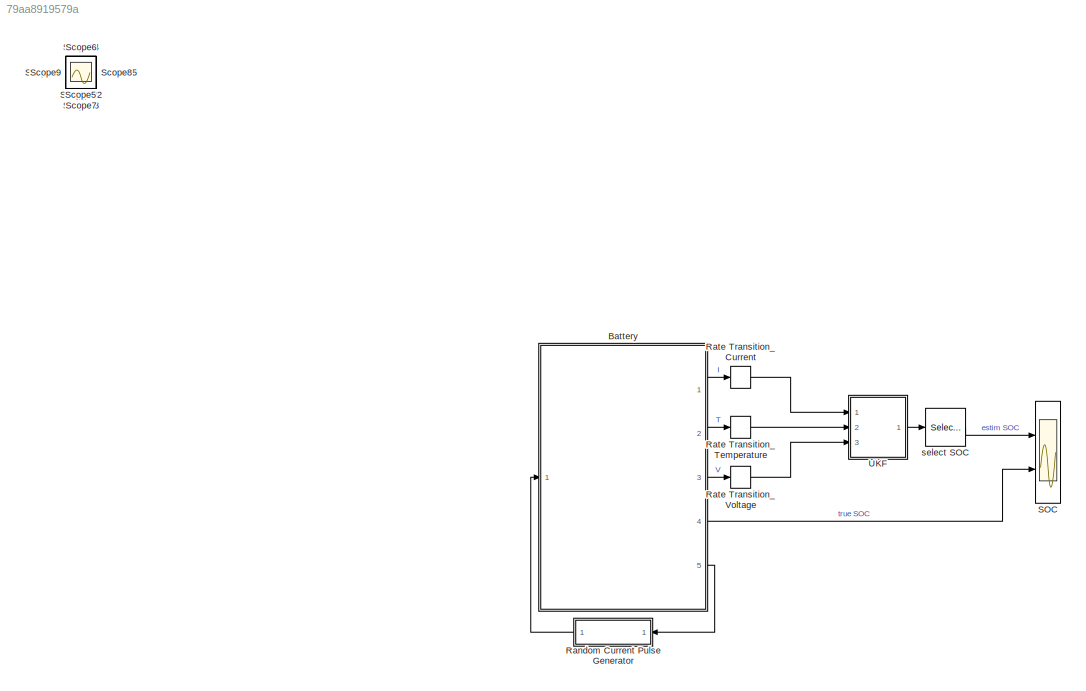
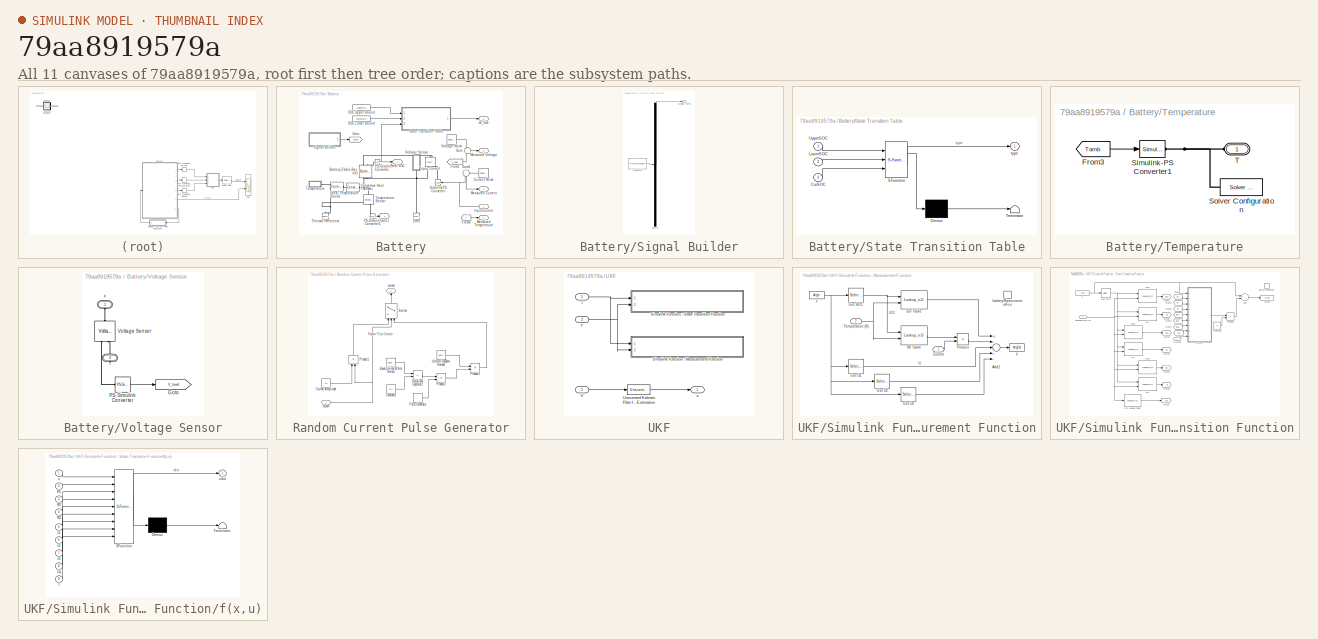
[diagram: thumbnail index - all 11 canvases of the model, root first then tree order]
MODEL slx_79aa8919579a
KIND model
CONFIG AbsTol = auto
CONFIG EnableMultiTasking = off
CONFIG FixedStep = auto
CONFIG MaxStep = auto
CONFIG MinStep = auto
CONFIG PreLoadFcn = socEstimation_ini\nload('BatteryParameters')
CONFIG RelTol = 1e-3
CONFIG SampleTimeConstraint = Unconstrained
CONFIG Solver = VariableStepAuto
CONFIG SolverName = VariableStepAuto
CONFIG StartTime = 0.0
CONFIG StopTime = 20000
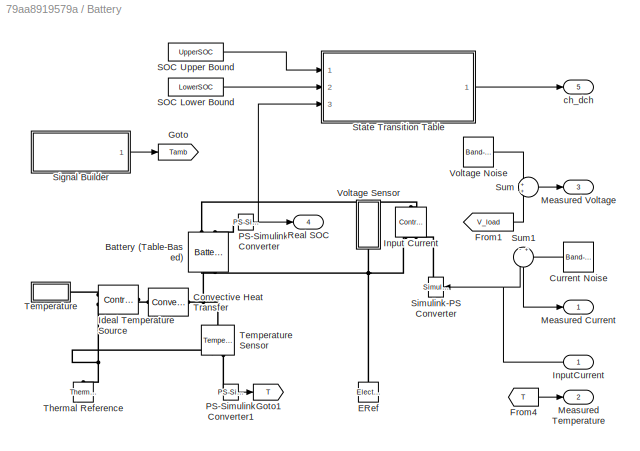
BLOCK [SubSystem] Battery
  Ports = [1, 5]
  RequestExecContextInheritance = off
BLOCK [Reference] Battery/Battery (Table-Based)  REF=ee_lib/Sources/Battery
(Table-Based)
  Ports = [0, 0, 0, 0, 0, 2, 2]
  SourceBlock = ee_lib/Sources/Battery\n(Table-Based)
  SourceProductBaseCode = PS
  SourceProductName = Simscape Electrical
  SourceType = Battery\n(Table-Based)
BLOCK [Reference] Battery/Convective Heat Transfer  REF=fl_lib/Thermal/Thermal Elements/Convective Heat
Transfer
  Ports = [0, 0, 0, 0, 0, 1, 1]
  SourceBlock = fl_lib/Thermal/Thermal Elements/Convective Heat\nTransfer
  SourceProductBaseCode = SS
  SourceProductName = Simscape
  SourceType = Convective Heat\nTransfer
BLOCK [Reference] Battery/Current Noise  REF=simulink/Sources/Band-Limited
White Noise
  Ports = [0, 1]
  SourceBlock = simulink/Sources/Band-Limited\nWhite Noise
  SourceProductBaseCode = SL
  SourceProductName = Simulink
  SourceType = Band-Limited White Noise.
BLOCK [Reference] Battery/ERef  REF=fl_lib/Electrical/Electrical Elements/Electrical Reference
  Ports = [0, 0, 0, 0, 0, 1]
  SourceBlock = fl_lib/Electrical/Electrical Elements/Electrical Reference
  SourceProductBaseCode = SS
  SourceProductName = Simscape
  SourceType = Electrical Reference
BLOCK [From] Battery/From1
  GotoTag = V_load
  TagVisibility = global
BLOCK [From] Battery/From4
  GotoTag = T
BLOCK [Goto] Battery/Goto
  GotoTag = Tamb
  TagVisibility = global
BLOCK [Goto] Battery/Goto1
  GotoTag = T
BLOCK [Reference] Battery/Ideal Temperature Source  REF=fl_lib/Thermal/Thermal Sources/Controlled
Temperature Source
  Ports = [0, 0, 0, 0, 0, 1, 2]
  SourceBlock = fl_lib/Thermal/Thermal Sources/Controlled\nTemperature Source
  SourceProductBaseCode = SS
  SourceProductName = Simscape
  SourceType = Controlled\nTemperature Source
BLOCK [Reference] Battery/Input Current  REF=fl_lib/Electrical/Electrical Sources/Controlled Current
Source
  Ports = [0, 0, 0, 0, 0, 1, 2]
  SourceBlock = fl_lib/Electrical/Electrical Sources/Controlled Current\nSource
  SourceProductBaseCode = SS
  SourceProductName = Simscape
  SourceType = Controlled Current\nSource
BLOCK [Inport] Battery/InputCurrent
  IconDisplay = Port number
BLOCK [Outport] Battery/Measured Current
  IconDisplay = Port number
  VectorParamsAs1DForOutWhenUnconnected = off
BLOCK [Outport] Battery/Measured Temperature
  IconDisplay = Port number
  Port = 2
  VectorParamsAs1DForOutWhenUnconnected = off
BLOCK [Outport] Battery/Measured Voltage
  IconDisplay = Port number
  Port = 3
  VectorParamsAs1DForOutWhenUnconnected = off
BLOCK [Reference] Battery/PS-Simulink Converter  REF=nesl_utility/PS-Simulink
Converter
  Ports = [0, 1, 0, 0, 0, 1]
  SourceBlock = nesl_utility/PS-Simulink\nConverter
  SourceProductBaseCode = SS
  SourceProductName = Simscape
  SourceType = PS-Simulink\nConverter
BLOCK [Reference] Battery/PS-Simulink Converter1  REF=nesl_utility/PS-Simulink
Converter
  Ports = [0, 1, 0, 0, 0, 1]
  SourceBlock = nesl_utility/PS-Simulink\nConverter
  SourceProductBaseCode = SS
  SourceProductName = Simscape
  SourceType = PS-Simulink\nConverter
BLOCK [Outport] Battery/Real SOC
  IconDisplay = Port number
  Port = 4
  VectorParamsAs1DForOutWhenUnconnected = off
BLOCK [Constant] Battery/SOC Lower Bound
  Value = LowerSOC
BLOCK [Constant] Battery/SOC Upper Bound
  Value = UpperSOC
BLOCK [SubSystem] Battery/Signal Builder
  ClipboardFcn = sigbuilder_block('clipboard');
  CloseFcn = sigbuilder_block('close');
  ContinueFcn = sigbuilder_block('continue');
  CopyFcn = sigbuilder_block('copy');
  DeleteFcn = sigbuilder_block('delete');
  LoadFcn = sigbuilder_block('load');
  MaskHideContents = on
  ModelCloseFcn = sigbuilder_block('modelClose');
  NameChangeFcn = sigbuilder_block('namechange');
  OpenFcn = sigbuilder_block('open',[45.6 240 978 346.2 ]);
  PauseFcn = sigbuilder_block('pause');
  Ports = [0, 1]
  PreSaveFcn = sigbuilder_block('preSave');
  RequestExecContextInheritance = off
  StartFcn = sigbuilder_block('start');
  StopFcn = sigbuilder_block('stop');
  Tag = STV Subsys
BLOCK [Outport] Battery/Signal Builder/Ambient Temp
  IconDisplay = Port number
  Tag = STV Outport
  VectorParamsAs1DForOutWhenUnconnected = off
BLOCK [Demux] Battery/Signal Builder/Demux
  Outputs = 1
  Ports = [1, 1]
  Tag = STV Demux
BLOCK [FromWorkspace] Battery/Signal Builder/FromWs
  SampleTime = 0
  Tag = STV FromWs
  VariableName = tuvar
  ZeroCross = on
BLOCK [Reference] Battery/Simulink-PS Converter  REF=nesl_utility/Simulink-PS
Converter
  Ports = [1, 0, 0, 0, 0, 0, 1]
  SourceBlock = nesl_utility/Simulink-PS\nConverter
  SourceProductBaseCode = SS
  SourceProductName = Simscape
  SourceType = Simulink-PS\nConverter
BLOCK [SubSystem] Battery/State Transition Table
  ErrorFcn = Stateflow.Translate.translate
  PermitHierarchicalResolution = ExplicitOnly
  Ports = [3, 1]
  RequestExecContextInheritance = off
  SFBlockType = State Transition Table
  TreatAsAtomicUnit = on
BLOCK [Demux] Battery/State Transition Table/ Demux 
  Outputs = 1
  Ports = [1, 1]
BLOCK [S-Function] Battery/State Transition Table/ SFunction 
  EnableBusSupport = on
  FunctionName = sf_sfun
  PortCounts = [3 2]
  Ports = [3, 2]
  SFcnIsStateOwnerBlock = off
  SFunctionDeploymentMode = off
  Tag = Stateflow S-Function 4
BLOCK [Terminator] Battery/State Transition Table/ Terminator 
BLOCK [Inport] Battery/State Transition Table/CurSOC
  IconDisplay = Port number
  Port = 3
BLOCK [Inport] Battery/State Transition Table/LowerSOC
  IconDisplay = Port number
  Port = 2
BLOCK [Inport] Battery/State Transition Table/UpperSOC
  IconDisplay = Port number
BLOCK [Outport] Battery/State Transition Table/type
  IconDisplay = Port number
  VectorParamsAs1DForOutWhenUnconnected = off
BLOCK [Sum] Battery/Sum
  IconShape = round
  InputSameDT = off
  OutDataTypeStr = Inherit: Inherit via internal rule
  Ports = [2, 1]
  SaturateOnIntegerOverflow = off
BLOCK [Sum] Battery/Sum1
  IconShape = round
  InputSameDT = off
  Inputs = -+
  OutDataTypeStr = Inherit: Inherit via internal rule
  Ports = [2, 1]
  SaturateOnIntegerOverflow = off
BLOCK [SubSystem] Battery/Temperature
  Ports = [0, 0, 0, 0, 0, 1]
  RequestExecContextInheritance = off
BLOCK [Reference] Battery/Temperature Sensor  REF=fl_lib/Thermal/Thermal Sensors/Temperature Sensor
  Ports = [0, 0, 0, 0, 0, 1, 2]
  SourceBlock = fl_lib/Thermal/Thermal Sensors/Temperature Sensor
  SourceProductBaseCode = SS
  SourceProductName = Simscape
  SourceType = Temperature Sensor
BLOCK [From] Battery/Temperature/From3
  GotoTag = Tamb
  TagVisibility = global
BLOCK [Reference] Battery/Temperature/Simulink-PS Converter1  REF=nesl_utility/Simulink-PS
Converter
  Ports = [1, 0, 0, 0, 0, 0, 1]
  SourceBlock = nesl_utility/Simulink-PS\nConverter
  SourceProductBaseCode = SS
  SourceProductName = Simscape
  SourceType = Simulink-PS\nConverter
BLOCK [Reference] Battery/Temperature/Solver Configuration  REF=nesl_utility/Solver
Configuration
  Ports = [0, 0, 0, 0, 0, 0, 1]
  SourceBlock = nesl_utility/Solver\nConfiguration
  SourceProductBaseCode = SS
  SourceProductName = Simscape
  SourceType = Solver\nConfiguration
BLOCK [PMIOPort] Battery/Temperature/T
  Side = Left
BLOCK [Reference] Battery/Thermal Reference  REF=fl_lib/Thermal/Thermal Elements/Thermal Reference
  Ports = [0, 0, 0, 0, 0, 1]
  SourceBlock = fl_lib/Thermal/Thermal Elements/Thermal Reference
  SourceProductBaseCode = SS
  SourceProductName = Simscape
  SourceType = Thermal Reference
BLOCK [Reference] Battery/Voltage Noise  REF=simulink/Sources/Band-Limited
White Noise
  Ports = [0, 1]
  SourceBlock = simulink/Sources/Band-Limited\nWhite Noise
  SourceProductBaseCode = SL
  SourceProductName = Simulink
  SourceType = Band-Limited White Noise.
BLOCK [SubSystem] Battery/Voltage Sensor
  Ports = [0, 0, 0, 0, 0, 1, 1]
  RequestExecContextInheritance = off
BLOCK [PMIOPort] Battery/Voltage Sensor/+
  Side = Left
BLOCK [PMIOPort] Battery/Voltage Sensor/-
  Port = 2
  Side = Right
BLOCK [Goto] Battery/Voltage Sensor/Goto
  GotoTag = V_load
  TagVisibility = global
BLOCK [Reference] Battery/Voltage Sensor/PS-Simulink Converter  REF=nesl_utility/PS-Simulink
Converter
  Ports = [0, 1, 0, 0, 0, 1]
  SourceBlock = nesl_utility/PS-Simulink\nConverter
  SourceProductBaseCode = SS
  SourceProductName = Simscape
  SourceType = PS-Simulink\nConverter
BLOCK [Reference] Battery/Voltage Sensor/Voltage Sensor  REF=fl_lib/Electrical/Electrical Sensors/Voltage Sensor
  Ports = [0, 0, 0, 0, 0, 1, 2]
  SourceBlock = fl_lib/Electrical/Electrical Sensors/Voltage Sensor
  SourceProductBaseCode = SS
  SourceProductName = Simscape
  SourceType = Voltage Sensor
BLOCK [Outport] Battery/ch_dch
  IconDisplay = Port number
  Port = 5
  VectorParamsAs1DForOutWhenUnconnected = off
BLOCK [SubSystem] Random Current Pulse Generator
  Ports = [1, 1]
  RequestExecContextInheritance = off
BLOCK [Reference] Random Current Pulse Generator/Band-Limited White Noise1  REF=simulink/Sources/Band-Limited
White Noise
  Ports = [0, 1]
  SourceBlock = simulink/Sources/Band-Limited\nWhite Noise
  SourceProductBaseCode = SL
  SourceProductName = Simulink
  SourceType = Band-Limited White Noise.
BLOCK [Constant] Random Current Pulse Generator/Constant2
  Value = 0.1
BLOCK [Constant] Random Current Pulse Generator/Current Amplitude
  Value = 15
BLOCK [Product] Random Current Pulse Generator/Product1
  InputSameDT = off
  OutDataTypeStr = Inherit: Inherit via internal rule
  Ports = [2, 1]
  RndMeth = Floor
  SaturateOnIntegerOverflow = off
BLOCK [Product] Random Current Pulse Generator/Product2
  InputSameDT = off
  OutDataTypeStr = Inherit: Inherit via internal rule
  Ports = [2, 1]
  RndMeth = Floor
  SaturateOnIntegerOverflow = off
BLOCK [Product] Random Current Pulse Generator/Product3
  InputSameDT = off
  OutDataTypeStr = Inherit: Inherit via internal rule
  Ports = [2, 1]
  RndMeth = Floor
  SaturateOnIntegerOverflow = off
BLOCK [DiscretePulseGenerator] Random Current Pulse Generator/Pulse Generator
  Amplitude = -1
  Period = 1000
  Ports = [0, 1]
  PulseType = Time based
  PulseWidth = 90
BLOCK [RelationalOperator] Random Current Pulse Generator/Relational Operator2
  InputSameDT = off
  Operator = <=
  OutDataTypeStr = boolean
  Ports = [2, 1]
  RndMeth = Simplest
BLOCK [Switch] Random Current Pulse Generator/Switch
  Criteria = u2 > Threshold
  InputSameDT = off
  SaturateOnIntegerOverflow = off
BLOCK [UniformRandomNumber] Random Current Pulse Generator/Uniform Random Number
  Maximum = 50
  Minimum = 5
  SampleTime = 100
BLOCK [Inport] Random Current Pulse Generator/ch_dch
  IconDisplay = Port number
BLOCK [Outport] Random Current Pulse Generator/current
  IconDisplay = Port number
  VectorParamsAs1DForOutWhenUnconnected = off
BLOCK [RateTransition] Rate Transition_Current
  OutPortSampleTime = Ts
BLOCK [RateTransition] Rate Transition_Temperature
  InitialCondition = 300
  OutPortSampleTime = Ts
BLOCK [RateTransition] Rate Transition_Voltage
  InitialCondition = 4
  OutPortSampleTime = Ts
BLOCK [Scope] SOC
  Floating = off
  NumInputPorts = 2
  Ports = [2]
  ScopeSpecificationString = Simulink.scopes.TimeScopeBlockCfg('CurrentConfiguration', extmgr.ConfigurationSet(extmgr.Configuration('Core','General UI',true),extmgr.Configuration('Core','Source UI',true),extmgr.Configuration('Sources','WiredSimulink',true,'DataLoggingVariableName','ScopeData1'),extmgr.Configuration('Visuals','Time Domain',true,'SerializedDisplays',{struct('MinYLimReal','0.06201','MaxYLimReal','1.4419','YLabel...<+1602ch>
BLOCK [Scope] Scope
  Floating = off
  IOType = viewer
  NumInputPorts = 1
  Ports = []
  ScopeSpecificationString = Simulink.scopes.TimeScopeBlockCfg('CurrentConfiguration', extmgr.ConfigurationSet(extmgr.Configuration('Core','General UI',true),extmgr.Configuration('Core','Source UI',true),extmgr.Configuration('Sources','WiredSimulink',true,'DataLoggingVariableName','ScopeData1'),extmgr.Configuration('Visuals','Time Domain',true,'SerializedDisplays',{struct('MinYLimReal','-0.125','MaxYLimReal','1.125','YLabelRe...<+1384ch>
BLOCK [Scope] Scope1
  Floating = off
  IOType = viewer
  NumInputPorts = 1
  Ports = []
  ScopeSpecificationString = Simulink.scopes.TimeScopeBlockCfg('CurrentConfiguration', extmgr.ConfigurationSet(extmgr.Configuration('Core','General UI',true),extmgr.Configuration('Core','Source UI',true),extmgr.Configuration('Sources','WiredSimulink',true,'DataLoggingVariableName','ScopeData1'),extmgr.Configuration('Visuals','Time Domain',true,'SerializedDisplays',{struct('MinYLimReal','-26.96569','MaxYLimReal','55.76087','YL...<+1481ch>
BLOCK [Scope] Scope10
  Floating = off
  IOType = viewer
  NumInputPorts = 1
  Ports = []
  ScopeSpecificationString = Simulink.scopes.TimeScopeBlockCfg('CurrentConfiguration', extmgr.ConfigurationSet(extmgr.Configuration('Core','General UI',true),extmgr.Configuration('Core','Source UI',true),extmgr.Configuration('Sources','WiredSimulink',true,'DataLoggingVariableName','ScopeData2'),extmgr.Configuration('Visuals','Time Domain',true,'SerializedDisplays',{struct('MinYLimReal','-10.00000','MaxYLimReal','10.00000','YL...<+1450ch>
BLOCK [Scope] Scope11
  Floating = off
  IOType = viewer
  NumInputPorts = 1
  Ports = []
  ScopeSpecificationString = Simulink.scopes.TimeScopeBlockCfg('CurrentConfiguration', extmgr.ConfigurationSet(extmgr.Configuration('Core','General UI',true),extmgr.Configuration('Core','Source UI',true),extmgr.Configuration('Sources','WiredSimulink',true,'DataLoggingVariableName','ScopeData1'),extmgr.Configuration('Visuals','Time Domain',true),extmgr.Configuration('Tools','Plot Navigation',true),extmgr.Configuration('Tools',...<+58ch>
BLOCK [Scope] Scope13
  Floating = off
  IOType = viewer
  NumInputPorts = 1
  Ports = []
  ScopeSpecificationString = Simulink.scopes.TimeScopeBlockCfg('CurrentConfiguration', extmgr.ConfigurationSet(extmgr.Configuration('Core','General UI',true),extmgr.Configuration('Core','Source UI',true),extmgr.Configuration('Sources','WiredSimulink',true,'DataLoggingVariableName','ScopeData1'),extmgr.Configuration('Visuals','Time Domain',true,'SerializedDisplays',{struct('MinYLimReal','18.33483','MaxYLimReal','34.98652','YLa...<+1365ch>
BLOCK [Scope] Scope17
  Floating = off
  IOType = viewer
  NumInputPorts = 1
  Ports = []
  ScopeSpecificationString = Simulink.scopes.TimeScopeBlockCfg('CurrentConfiguration', extmgr.ConfigurationSet(extmgr.Configuration('Core','General UI',true),extmgr.Configuration('Core','Source UI',true),extmgr.Configuration('Sources','WiredSimulink',true,'DataLoggingVariableName','ScopeData4'),extmgr.Configuration('Visuals','Time Domain',true,'SerializedDisplays',{struct('MinYLimReal','0.999987','MaxYLimReal','1.000001','YLa...<+1421ch>
BLOCK [Scope] Scope18
  Floating = off
  IOType = viewer
  NumInputPorts = 1
  Ports = []
  ScopeSpecificationString = Simulink.scopes.TimeScopeBlockCfg('CurrentConfiguration', extmgr.ConfigurationSet(extmgr.Configuration('Core','General UI',true),extmgr.Configuration('Core','Source UI',true),extmgr.Configuration('Sources','WiredSimulink',true,'DataLoggingVariableName','ScopeData5'),extmgr.Configuration('Visuals','Time Domain',true,'SerializedDisplays',{struct('MinYLimReal','-0.00000011','MaxYLimReal','0.00000003'...<+1431ch>
BLOCK [Scope] Scope2
  Floating = off
  IOType = viewer
  NumInputPorts = 1
  Ports = []
  ScopeSpecificationString = Simulink.scopes.TimeScopeBlockCfg('CurrentConfiguration', extmgr.ConfigurationSet(extmgr.Configuration('Core','General UI',true),extmgr.Configuration('Core','Source UI',true),extmgr.Configuration('Sources','WiredSimulink',true,'DataLoggingVariableName','ScopeData2'),extmgr.Configuration('Visuals','Time Domain',true,'SerializedDisplays',{struct('MinYLimReal','-0.125','MaxYLimReal','1.125','YLabelRe...<+1347ch>
BLOCK [Scope] Scope20
  Floating = off
  IOType = viewer
  NumInputPorts = 1
  Ports = []
  ScopeSpecificationString = Simulink.scopes.TimeScopeBlockCfg('CurrentConfiguration', extmgr.ConfigurationSet(extmgr.Configuration('Core','General UI',true),extmgr.Configuration('Core','Source UI',true),extmgr.Configuration('Sources','WiredSimulink',true,'DataLoggingVariableName','ScopeData1'),extmgr.Configuration('Visuals','Time Domain',true,'SerializedDisplays',{struct('MinYLimReal','29.3125','MaxYLimReal','31.1875','YLabe...<+1438ch>
BLOCK [Scope] Scope22
  Floating = off
  IOType = viewer
  NumInputPorts = 1
  Ports = []
  ScopeSpecificationString = Simulink.scopes.TimeScopeBlockCfg('CurrentConfiguration', extmgr.ConfigurationSet(extmgr.Configuration('Core','General UI',true),extmgr.Configuration('Core','Source UI',true),extmgr.Configuration('Sources','WiredSimulink',true,'DataLoggingVariableName','ScopeData1'),extmgr.Configuration('Visuals','Time Domain',true,'SerializedDisplays',{struct('MinYLimReal','27.55102','MaxYLimReal','31.34111','YLa...<+1409ch>
BLOCK [Scope] Scope23
  Floating = off
  IOType = viewer
  NumInputPorts = 1
  Ports = []
  ScopeSpecificationString = Simulink.scopes.TimeScopeBlockCfg('CurrentConfiguration', extmgr.ConfigurationSet(extmgr.Configuration('Core','General UI',true),extmgr.Configuration('Core','Source UI',true),extmgr.Configuration('Sources','WiredSimulink',true,'DataLoggingVariableName','ScopeData1'),extmgr.Configuration('Visuals','Time Domain',true,'SerializedDisplays',{struct('MinYLimReal','0.98624','MaxYLimReal','1.12386','YLabe...<+1357ch>
BLOCK [Scope] Scope24
  Floating = off
  IOType = viewer
  NumInputPorts = 1
  Ports = []
  ScopeSpecificationString = Simulink.scopes.TimeScopeBlockCfg('CurrentConfiguration', extmgr.ConfigurationSet(extmgr.Configuration('Core','General UI',true),extmgr.Configuration('Core','Source UI',true),extmgr.Configuration('Sources','WiredSimulink',true,'DataLoggingVariableName','ScopeData1'),extmgr.Configuration('Visuals','Time Domain',true,'SerializedDisplays',{struct('MinYLimReal','-114781.3155','MaxYLimReal','114775.701...<+1455ch>
BLOCK [Scope] Scope25
  Floating = off
  IOType = viewer
  NumInputPorts = 1
  Ports = []
  ScopeSpecificationString = Simulink.scopes.TimeScopeBlockCfg('CurrentConfiguration', extmgr.ConfigurationSet(extmgr.Configuration('Core','General UI',true),extmgr.Configuration('Core','Source UI',true),extmgr.Configuration('Sources','WiredSimulink',true,'DataLoggingVariableName','ScopeData2'),extmgr.Configuration('Visuals','Time Domain',true,'SerializedDisplays',{struct('MinYLimReal','13.30951','MaxYLimReal','45.58518','YLa...<+1421ch>
BLOCK [Scope] Scope26
  Floating = off
  IOType = viewer
  NumInputPorts = 1
  Ports = []
  ScopeSpecificationString = Simulink.scopes.TimeScopeBlockCfg('CurrentConfiguration', extmgr.ConfigurationSet(extmgr.Configuration('Core','General UI',true),extmgr.Configuration('Core','Source UI',true),extmgr.Configuration('Sources','WiredSimulink',true,'DataLoggingVariableName','ScopeData1'),extmgr.Configuration('Visuals','Time Domain',true,'SerializedDisplays',{struct('MinYLimReal','-485.67085','MaxYLimReal','54.67723','Y...<+1396ch>
BLOCK [Scope] Scope27
  Floating = off
  IOType = viewer
  NumInputPorts = 1
  Ports = []
  ScopeSpecificationString = Simulink.scopes.TimeScopeBlockCfg('CurrentConfiguration', extmgr.ConfigurationSet(extmgr.Configuration('Core','General UI',true),extmgr.Configuration('Core','Source UI',true),extmgr.Configuration('Sources','WiredSimulink',true,'DataLoggingVariableName','ScopeData2'),extmgr.Configuration('Visuals','Time Domain',true,'SerializedDisplays',{struct('MinYLimReal','-0.00035','MaxYLimReal','0.00016','YLab...<+1440ch>
BLOCK [Scope] Scope28
  Floating = off
  IOType = viewer
  NumInputPorts = 1
  Ports = []
  ScopeSpecificationString = Simulink.scopes.TimeScopeBlockCfg('CurrentConfiguration', extmgr.ConfigurationSet(extmgr.Configuration('Core','General UI',true),extmgr.Configuration('Core','Source UI',true),extmgr.Configuration('Sources','WiredSimulink',true,'DataLoggingVariableName','ScopeData3'),extmgr.Configuration('Visuals','Time Domain',true,'SerializedDisplays',{struct('MinYLimReal','-10.00000','MaxYLimReal','10.00000','YL...<+1365ch>
BLOCK [Scope] Scope29
  Floating = off
  IOType = viewer
  NumInputPorts = 1
  Ports = []
  ScopeSpecificationString = Simulink.scopes.TimeScopeBlockCfg('CurrentConfiguration', extmgr.ConfigurationSet(extmgr.Configuration('Core','General UI',true),extmgr.Configuration('Core','Source UI',true),extmgr.Configuration('Sources','WiredSimulink',true,'DataLoggingVariableName','ScopeData4'),extmgr.Configuration('Visuals','Time Domain',true,'SerializedDisplays',{struct('MinYLimReal','-0.12458','MaxYLimReal','1.12121','YLab...<+1396ch>
BLOCK [Scope] Scope3
  Floating = off
  IOType = viewer
  NumInputPorts = 1
  Ports = []
  ScopeSpecificationString = Simulink.scopes.TimeScopeBlockCfg('CurrentConfiguration', extmgr.ConfigurationSet(extmgr.Configuration('Core','General UI',true),extmgr.Configuration('Core','Source UI',true),extmgr.Configuration('Sources','WiredSimulink',true,'DataLoggingVariableName','ScopeData3'),extmgr.Configuration('Visuals','Time Domain',true,'SerializedDisplays',{struct('MinYLimReal','-0.25','MaxYLimReal','2.25','YLabelReal...<+1341ch>
BLOCK [Scope] Scope30
  Floating = off
  IOType = viewer
  NumInputPorts = 1
  Ports = []
  ScopeSpecificationString = Simulink.scopes.TimeScopeBlockCfg('CurrentConfiguration', extmgr.ConfigurationSet(extmgr.Configuration('Core','General UI',true),extmgr.Configuration('Core','Source UI',true),extmgr.Configuration('Sources','WiredSimulink',true,'DataLoggingVariableName','ScopeData2'),extmgr.Configuration('Visuals','Time Domain',true,'SerializedDisplays',{struct('MinYLimReal','-10.00000','MaxYLimReal','10.00000','YL...<+1365ch>
BLOCK [Scope] Scope31
  Floating = off
  IOType = viewer
  NumInputPorts = 1
  Ports = []
  ScopeSpecificationString = Simulink.scopes.TimeScopeBlockCfg('CurrentConfiguration', extmgr.ConfigurationSet(extmgr.Configuration('Core','General UI',true),extmgr.Configuration('Core','Source UI',true),extmgr.Configuration('Sources','WiredSimulink',true,'DataLoggingVariableName','ScopeData3'),extmgr.Configuration('Visuals','Time Domain',true,'SerializedDisplays',{struct('MinYLimReal','-10.00000','MaxYLimReal','10.00000','YL...<+1365ch>
BLOCK [Scope] Scope32
  Floating = off
  IOType = viewer
  NumInputPorts = 1
  Ports = []
  ScopeSpecificationString = Simulink.scopes.TimeScopeBlockCfg('CurrentConfiguration', extmgr.ConfigurationSet(extmgr.Configuration('Core','General UI',true),extmgr.Configuration('Core','Source UI',true),extmgr.Configuration('Sources','WiredSimulink',true,'DataLoggingVariableName','ScopeData1'),extmgr.Configuration('Visuals','Time Domain',true,'SerializedDisplays',{struct('MinYLimReal','-1.06126','MaxYLimReal','1.06127','YLab...<+1440ch>
BLOCK [Scope] Scope33
  Floating = off
  IOType = viewer
  NumInputPorts = 1
  Ports = []
  ScopeSpecificationString = Simulink.scopes.TimeScopeBlockCfg('CurrentConfiguration', extmgr.ConfigurationSet(extmgr.Configuration('Core','General UI',true),extmgr.Configuration('Core','Source UI',true),extmgr.Configuration('Sources','WiredSimulink',true,'DataLoggingVariableName','ScopeData2'),extmgr.Configuration('Visuals','Time Domain',true,'SerializedDisplays',{struct('MinYLimReal','-0.00059','MaxYLimReal','0.00042','YLab...<+1440ch>
BLOCK [Scope] Scope34
  Floating = off
  IOType = viewer
  NumInputPorts = 1
  Ports = []
  ScopeSpecificationString = Simulink.scopes.TimeScopeBlockCfg('CurrentConfiguration', extmgr.ConfigurationSet(extmgr.Configuration('Core','General UI',true),extmgr.Configuration('Core','Source UI',true),extmgr.Configuration('Sources','WiredSimulink',true,'DataLoggingVariableName','ScopeData1'),extmgr.Configuration('Visuals','Time Domain',true,'SerializedDisplays',{struct('MinYLimReal','-0.85697','MaxYLimReal','-0.83434','YLa...<+1442ch>
BLOCK [Scope] Scope35
  Floating = off
  IOType = viewer
  NumInputPorts = 1
  Ports = []
  ScopeSpecificationString = Simulink.scopes.TimeScopeBlockCfg('CurrentConfiguration', extmgr.ConfigurationSet(extmgr.Configuration('Core','General UI',true),extmgr.Configuration('Core','Source UI',true),extmgr.Configuration('Sources','WiredSimulink',true,'DataLoggingVariableName','ScopeData2'),extmgr.Configuration('Visuals','Time Domain',true,'SerializedDisplays',{struct('MinYLimReal','81460.1851','MaxYLimReal','97590.97105'...<+1459ch>
BLOCK [Scope] Scope4
  Floating = off
  IOType = viewer
  NumInputPorts = 1
  Ports = []
  ScopeSpecificationString = Simulink.scopes.TimeScopeBlockCfg('CurrentConfiguration', extmgr.ConfigurationSet(extmgr.Configuration('Core','General UI',true),extmgr.Configuration('Core','Source UI',true),extmgr.Configuration('Sources','WiredSimulink',true,'DataLoggingVariableName','ScopeData4'),extmgr.Configuration('Visuals','Time Domain',true,'SerializedDisplays',{struct('MinYLimReal','-0.04113','MaxYLimReal','1.01085','YLab...<+1415ch>
BLOCK [Scope] Scope5
  Floating = off
  IOType = viewer
  NumInputPorts = 1
  Ports = []
  ScopeSpecificationString = Simulink.scopes.TimeScopeBlockCfg('CurrentConfiguration', extmgr.ConfigurationSet(extmgr.Configuration('Core','General UI',true),extmgr.Configuration('Core','Source UI',true),extmgr.Configuration('Sources','WiredSimulink',true,'DataLoggingVariableName','ScopeData5'),extmgr.Configuration('Visuals','Time Domain',true,'SerializedDisplays',{struct('MinYLimReal','-0.0000000001','MaxYLimReal','0.0000000...<+1399ch>
BLOCK [Scope] Scope6
  Floating = off
  IOType = viewer
  NumInputPorts = 1
  Ports = []
  ScopeSpecificationString = Simulink.scopes.TimeScopeBlockCfg('CurrentConfiguration', extmgr.ConfigurationSet(extmgr.Configuration('Core','General UI',true),extmgr.Configuration('Core','Source UI',true),extmgr.Configuration('Sources','WiredSimulink',true,'DataLoggingVariableName','ScopeData6'),extmgr.Configuration('Visuals','Time Domain',true,'SerializedDisplays',{struct('MinYLimReal','-12.5','MaxYLimReal','112.5','YLabelRea...<+1345ch>
BLOCK [Scope] Scope7
  Floating = off
  IOType = viewer
  NumInputPorts = 1
  Ports = []
  ScopeSpecificationString = Simulink.scopes.TimeScopeBlockCfg('CurrentConfiguration', extmgr.ConfigurationSet(extmgr.Configuration('Core','General UI',true),extmgr.Configuration('Core','Source UI',true),extmgr.Configuration('Sources','WiredSimulink',true,'DataLoggingVariableName','ScopeData7'),extmgr.Configuration('Visuals','Time Domain',true,'SerializedDisplays',{struct('MinYLimReal','-1.25','MaxYLimReal','1.25','YLabelReal...<+1341ch>
BLOCK [Scope] Scope8
  Floating = off
  IOType = viewer
  NumInputPorts = 1
  Ports = []
  ScopeSpecificationString = Simulink.scopes.TimeScopeBlockCfg('CurrentConfiguration', extmgr.ConfigurationSet(extmgr.Configuration('Core','General UI',true),extmgr.Configuration('Core','Source UI',true),extmgr.Configuration('Sources','WiredSimulink',true,'DataLoggingVariableName','ScopeData1'),extmgr.Configuration('Visuals','Time Domain',true,'SerializedDisplays',{struct('MinYLimReal','-0.125','MaxYLimReal','1.125','YLabelRe...<+1347ch>
BLOCK [Scope] Scope9
  Floating = off
  IOType = viewer
  NumInputPorts = 1
  Ports = []
  ScopeSpecificationString = Simulink.scopes.TimeScopeBlockCfg('CurrentConfiguration', extmgr.ConfigurationSet(extmgr.Configuration('Core','General UI',true),extmgr.Configuration('Core','Source UI',true),extmgr.Configuration('Sources','WiredSimulink',true,'DataLoggingVariableName','ScopeData1'),extmgr.Configuration('Visuals','Time Domain',true,'SerializedDisplays',{struct('MinYLimReal','0.87899','MaxYLimReal','0.88227','YLabe...<+1413ch>
BLOCK [SubSystem] UKF
  Ports = [3, 1]
  RequestExecContextInheritance = off
BLOCK [Inport] UKF/I
  IconDisplay = Port number
BLOCK [SubSystem] UKF/Simulink Function - Measurement Function
  Ports = [2, 0, 0, 1]
  RequestExecContextInheritance = off
  TreatAsAtomicUnit = on
BLOCK [Sum] UKF/Simulink Function - Measurement Function/Add1
  InputSameDT = off
  Inputs = +----
  OutDataTypeStr = Inherit: Inherit via internal rule
  Ports = [5, 1]
  SaturateOnIntegerOverflow = off
BLOCK [Inport] UKF/Simulink Function - Measurement Function/Current
  IconDisplay = Port number
BLOCK [Lookup_n-D] UKF/Simulink Function - Measurement Function/Em Table
  BreakpointsForDimension1 = Battery.SOC_LUT
  BreakpointsForDimension2 = Battery.Temperature_LUT
  InternalRulePriority = Speed
  Ports = [2, 1]
  RndMeth = Simplest
  Table = Battery.Em_LUT
BLOCK [Selector] UKF/Simulink Function - Measurement Function/Get SOC
  IndexOptions = Index vector (dialog)
  Indices = [1]
  InputPortWidth = 4
  OutputSizes = 1
  Ports = [1, 1]
BLOCK [Selector] UKF/Simulink Function - Measurement Function/Get U1
  IndexOptions = Index vector (dialog)
  Indices = 2
  InputPortWidth = 4
  OutputSizes = 1
  Ports = [1, 1]
BLOCK [Selector] UKF/Simulink Function - Measurement Function/Get U2
  IndexOptions = Index vector (dialog)
  Indices = 3
  InputPortWidth = 4
  OutputSizes = 1
  Ports = [1, 1]
BLOCK [Selector] UKF/Simulink Function - Measurement Function/Get U3
  IndexOptions = Index vector (dialog)
  Indices = 4
  InputPortWidth = 4
  OutputSizes = 1
  Ports = [1, 1]
BLOCK [Product] UKF/Simulink Function - Measurement Function/Product
  InputSameDT = off
  OutDataTypeStr = Inherit: Inherit via internal rule
  Ports = [2, 1]
  RndMeth = Floor
  SaturateOnIntegerOverflow = off
BLOCK [Lookup_n-D] UKF/Simulink Function - Measurement Function/R0 Table
  BreakpointsForDimension1 = Battery.SOC_LUT
  BreakpointsForDimension2 = Battery.Temperature_LUT
  InternalRulePriority = Speed
  Ports = [2, 1]
  RndMeth = Simplest
  Table = Battery.R0_LUT
BLOCK [Inport] UKF/Simulink Function - Measurement Function/Temperature (K)
  IconDisplay = Port number
  Port = 2
BLOCK [TriggerPort] UKF/Simulink Function - Measurement Function/batteryMeasurementFcn
  FunctionName = batteryMeasurementFcn
  IsSimulinkFunction = on
  Ports = []
  StatesWhenEnabling = held
  TriggerType = function-call
  VariantControl = Variant
BLOCK [ArgIn] UKF/Simulink Function - Measurement Function/x
  ArgumentName = x
  DisableCoverage = on
  PortDimensions = 4
BLOCK [ArgOut] UKF/Simulink Function - Measurement Function/y
  ArgumentName = y
  DisableCoverage = on
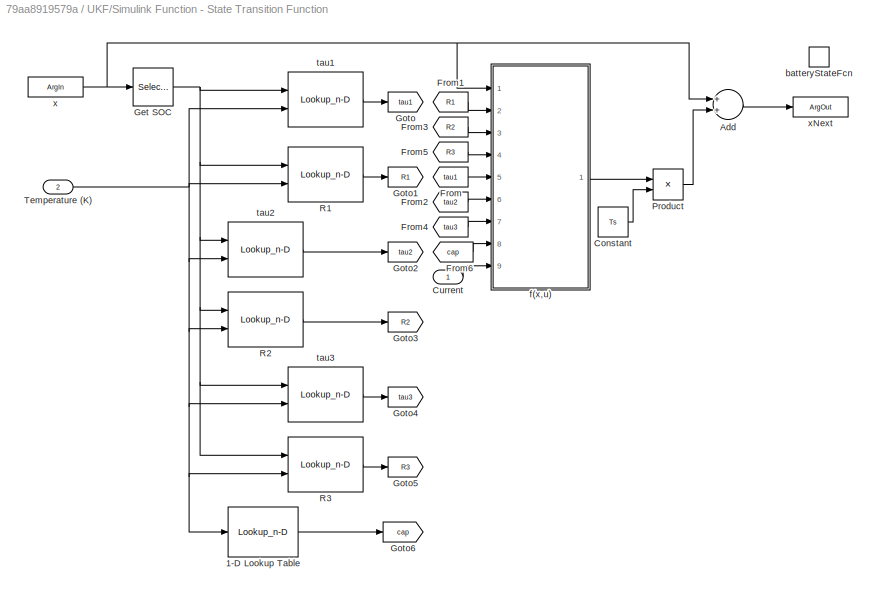
BLOCK [SubSystem] UKF/Simulink Function - State Transition Function
  Ports = [2, 0, 0, 1]
  RequestExecContextInheritance = off
  TreatAsAtomicUnit = on
BLOCK [Lookup_n-D] UKF/Simulink Function - State Transition Function/1-D Lookup Table
  BreakpointsForDimension1 = Battery.Temperature_LUT
  InternalRulePriority = Speed
  NumberOfTableDimensions = 1
  Ports = [1, 1]
  RndMeth = Simplest
  Table = Battery.Capacity_LUT
BLOCK [Sum] UKF/Simulink Function - State Transition Function/Add
  InputSameDT = off
  OutDataTypeStr = Inherit: Inherit via internal rule
  Ports = [2, 1]
  SaturateOnIntegerOverflow = off
BLOCK [Constant] UKF/Simulink Function - State Transition Function/Constant
  Value = Ts
BLOCK [Inport] UKF/Simulink Function - State Transition Function/Current
  IconDisplay = Port number
BLOCK [From] UKF/Simulink Function - State Transition Function/From
  GotoTag = tau1
BLOCK [From] UKF/Simulink Function - State Transition Function/From1
  GotoTag = R1
BLOCK [From] UKF/Simulink Function - State Transition Function/From2
  GotoTag = tau2
BLOCK [From] UKF/Simulink Function - State Transition Function/From3
  GotoTag = R2
BLOCK [From] UKF/Simulink Function - State Transition Function/From4
  GotoTag = tau3
BLOCK [From] UKF/Simulink Function - State Transition Function/From5
  GotoTag = R3
BLOCK [From] UKF/Simulink Function - State Transition Function/From6
  GotoTag = cap
BLOCK [Selector] UKF/Simulink Function - State Transition Function/Get SOC
  IndexOptions = Index vector (dialog)
  Indices = 1
  InputPortWidth = 4
  OutputSizes = 1
  Ports = [1, 1]
BLOCK [Goto] UKF/Simulink Function - State Transition Function/Goto
  GotoTag = tau1
BLOCK [Goto] UKF/Simulink Function - State Transition Function/Goto1
  GotoTag = R1
BLOCK [Goto] UKF/Simulink Function - State Transition Function/Goto2
  GotoTag = tau2
BLOCK [Goto] UKF/Simulink Function - State Transition Function/Goto3
  GotoTag = R2
BLOCK [Goto] UKF/Simulink Function - State Transition Function/Goto4
  GotoTag = tau3
BLOCK [Goto] UKF/Simulink Function - State Transition Function/Goto5
  GotoTag = R3
BLOCK [Goto] UKF/Simulink Function - State Transition Function/Goto6
  GotoTag = cap
BLOCK [Product] UKF/Simulink Function - State Transition Function/Product
  InputSameDT = off
  OutDataTypeStr = Inherit: Inherit via internal rule
  Ports = [2, 1]
  RndMeth = Floor
  SaturateOnIntegerOverflow = off
BLOCK [Lookup_n-D] UKF/Simulink Function - State Transition Function/R1
  BreakpointsForDimension1 = Battery.SOC_LUT
  BreakpointsForDimension2 = Battery.Temperature_LUT
  InternalRulePriority = Speed
  Ports = [2, 1]
  RndMeth = Simplest
  Table = Battery.R1_LUT
BLOCK [Lookup_n-D] UKF/Simulink Function - State Transition Function/R2
  BreakpointsForDimension1 = Battery.SOC_LUT
  BreakpointsForDimension2 = Battery.Temperature_LUT
  InternalRulePriority = Speed
  Ports = [2, 1]
  RndMeth = Simplest
  Table = Battery.R2_LUT
BLOCK [Lookup_n-D] UKF/Simulink Function - State Transition Function/R3
  BreakpointsForDimension1 = Battery.SOC_LUT
  BreakpointsForDimension2 = Battery.Temperature_LUT
  InternalRulePriority = Speed
  Ports = [2, 1]
  RndMeth = Simplest
  Table = Battery.R3_LUT
BLOCK [Inport] UKF/Simulink Function - State Transition Function/Temperature (K)
  IconDisplay = Port number
  Port = 2
BLOCK [TriggerPort] UKF/Simulink Function - State Transition Function/batteryStateFcn
  FunctionName = batteryStateFcn
  IsSimulinkFunction = on
  Ports = []
  StatesWhenEnabling = held
  TriggerType = function-call
  VariantControl = Variant
BLOCK [SubSystem] UKF/Simulink Function - State Transition Function/f(x,u)
  ErrorFcn = Stateflow.Translate.translate
  PermitHierarchicalResolution = ExplicitOnly
  Ports = [9, 1]
  RequestExecContextInheritance = off
  SFBlockType = MATLAB Function
  TreatAsAtomicUnit = on
BLOCK [Demux] UKF/Simulink Function - State Transition Function/f(x,u)/ Demux 
  Outputs = 1
  Ports = [1, 1]
BLOCK [S-Function] UKF/Simulink Function - State Transition Function/f(x,u)/ SFunction 
  EnableBusSupport = on
  FunctionName = sf_sfun
  PortCounts = [9 2]
  Ports = [9, 2]
  SFcnIsStateOwnerBlock = off
  SFunctionDeploymentMode = off
  Tag = Stateflow S-Function 3
BLOCK [Terminator] UKF/Simulink Function - State Transition Function/f(x,u)/ Terminator 
BLOCK [Inport] UKF/Simulink Function - State Transition Function/f(x,u)/Cq
  IconDisplay = Port number
  Port = 8
BLOCK [Inport] UKF/Simulink Function - State Transition Function/f(x,u)/I
  IconDisplay = Port number
  Port = 9
BLOCK [Inport] UKF/Simulink Function - State Transition Function/f(x,u)/R1
  IconDisplay = Port number
  Port = 2
BLOCK [Inport] UKF/Simulink Function - State Transition Function/f(x,u)/R2
  IconDisplay = Port number
  Port = 3
BLOCK [Inport] UKF/Simulink Function - State Transition Function/f(x,u)/R3
  IconDisplay = Port number
  Port = 4
BLOCK [Inport] UKF/Simulink Function - State Transition Function/f(x,u)/t1
  IconDisplay = Port number
  Port = 5
BLOCK [Inport] UKF/Simulink Function - State Transition Function/f(x,u)/t2
  IconDisplay = Port number
  Port = 6
BLOCK [Inport] UKF/Simulink Function - State Transition Function/f(x,u)/t3
  IconDisplay = Port number
  Port = 7
BLOCK [Inport] UKF/Simulink Function - State Transition Function/f(x,u)/x
  IconDisplay = Port number
BLOCK [Outport] UKF/Simulink Function - State Transition Function/f(x,u)/xdot
  IconDisplay = Port number
  VectorParamsAs1DForOutWhenUnconnected = off
BLOCK [Lookup_n-D] UKF/Simulink Function - State Transition Function/tau1
  BreakpointsForDimension1 = Battery.SOC_LUT
  BreakpointsForDimension2 = Battery.Temperature_LUT
  InternalRulePriority = Speed
  Ports = [2, 1]
  RndMeth = Simplest
  Table = Battery.t1_LUT
BLOCK [Lookup_n-D] UKF/Simulink Function - State Transition Function/tau2
  BreakpointsForDimension1 = Battery.SOC_LUT
  BreakpointsForDimension2 = Battery.Temperature_LUT
  InternalRulePriority = Speed
  Ports = [2, 1]
  RndMeth = Simplest
  Table = Battery.t2_LUT
BLOCK [Lookup_n-D] UKF/Simulink Function - State Transition Function/tau3
  BreakpointsForDimension1 = Battery.SOC_LUT
  BreakpointsForDimension2 = Battery.Temperature_LUT
  InternalRulePriority = Speed
  Ports = [2, 1]
  RndMeth = Simplest
  Table = Battery.t3_LUT
BLOCK [ArgIn] UKF/Simulink Function - State Transition Function/x
  ArgumentName = x
  DisableCoverage = on
  PortDimensions = 4
BLOCK [ArgOut] UKF/Simulink Function - State Transition Function/xNext
  ArgumentName = xNext
  DisableCoverage = on
  PortDimensions = 4
BLOCK [Inport] UKF/T
  IconDisplay = Port number
  Port = 2
BLOCK [Reference] UKF/Unscented Kalman Filter for SOC Estimation  REF=sharedTrackingLibrary/Unscented Kalman Filter
  Ports = [1, 1]
  SourceBlock = sharedTrackingLibrary/Unscented Kalman Filter
  SourceProductBaseCode = CT
  SourceProductName = Control System Toolbox
  SourceType = Unscented Kalman Filter
BLOCK [Inport] UKF/V
  IconDisplay = Port number
  Port = 3
BLOCK [Outport] UKF/x
  IconDisplay = Port number
  VectorParamsAs1DForOutWhenUnconnected = off
BLOCK [Selector] select SOC
  IndexOptions = Index vector (dialog)
  Indices = 1
  InputPortWidth = 4
  OutputSizes = 1
  Ports = [1, 1]
ANNOTATION Random Current Pulse Generator: Random Pulse Genrator
LINE Battery/Current Noise:1 -> Battery/Sum1:2
LINE Battery/From1:1 -> Battery/Sum:2
LINE Battery/From4:1 -> Battery/Measured Temperature:1
NET Battery/InputCurrent:1 -> Battery/Simulink-PS Converter:1, Battery/Sum1:1
LINE Battery/PS-Simulink Converter1:1 -> Battery/Goto1:1
NET Battery/PS-Simulink Converter:1 -> Battery/Real SOC:1, Battery/State Transition Table:3
LINE Battery/SOC Lower Bound:1 -> Battery/State Transition Table:2
LINE Battery/SOC Upper Bound:1 -> Battery/State Transition Table:1
LINE Battery/Signal Builder:1 -> Battery/Goto:1
LINE Battery/State Transition Table:1 -> Battery/ch_dch:1
LINE Battery/Sum1:1 -> Battery/Measured Current:1
LINE Battery/Sum:1 -> Battery/Measured Voltage:1
LINE Battery/Temperature/From3:1 -> Battery/Temperature/Simulink-PS Converter1:1
LINE Battery/Voltage Noise:1 -> Battery/Sum:1
LINE Battery/Voltage Sensor/PS-Simulink Converter:1 -> Battery/Voltage Sensor/Goto:1
LINE Battery:1 -> Rate Transition_Current:1
LINE Battery:2 -> Rate Transition_Temperature:1
LINE Battery:3 -> Rate Transition_Voltage:1
LINE Battery:4 -> SOC:2
LINE Battery:5 -> Random Current Pulse Generator:1
LINE Random Current Pulse Generator/Band-Limited White Noise1:1 -> Random Current Pulse Generator/Relational Operator2:1
LINE Random Current Pulse Generator/Constant2:1 -> Random Current Pulse Generator/Relational Operator2:2
LINE Random Current Pulse Generator/Current Amplitude:1 -> Random Current Pulse Generator/Product1:1
LINE Random Current Pulse Generator/Product1:1 -> Random Current Pulse Generator/Switch:1
LINE Random Current Pulse Generator/Product2:1 -> Random Current Pulse Generator/Product3:2
LINE Random Current Pulse Generator/Product3:1 -> Random Current Pulse Generator/Switch:3
LINE Random Current Pulse Generator/Pulse Generator:1 -> Random Current Pulse Generator/Product2:2
LINE Random Current Pulse Generator/Relational Operator2:1 -> Random Current Pulse Generator/Product2:1
LINE Random Current Pulse Generator/Switch:1 -> Random Current Pulse Generator/current:1
LINE Random Current Pulse Generator/Uniform Random Number:1 -> Random Current Pulse Generator/Product3:1
NET Random Current Pulse Generator/ch_dch:1 -> Random Current Pulse Generator/Product1:2, Random Current Pulse Generator/Switch:2
LINE Random Current Pulse Generator:1 -> Battery:1
LINE Rate Transition_Current:1 -> UKF:1
LINE Rate Transition_Temperature:1 -> UKF:2
LINE Rate Transition_Voltage:1 -> UKF:3
NET UKF/I:1 -> UKF/Simulink Function - Measurement Function:1, UKF/Simulink Function - State Transition Function:1
LINE UKF/Simulink Function - Measurement Function/Add1:1 -> UKF/Simulink Function - Measurement Function/y:1
LINE UKF/Simulink Function - Measurement Function/Current:1 -> UKF/Simulink Function - Measurement Function/Product:2
LINE UKF/Simulink Function - Measurement Function/Em Table:1 -> UKF/Simulink Function - Measurement Function/Add1:1
NET UKF/Simulink Function - Measurement Function/Get SOC:1 -> UKF/Simulink Function - Measurement Function/Em Table:1, UKF/Simulink Function - Measurement Function/R0 Table:1
LINE UKF/Simulink Function - Measurement Function/Get U1:1 -> UKF/Simulink Function - Measurement Function/Add1:3
LINE UKF/Simulink Function - Measurement Function/Get U2:1 -> UKF/Simulink Function - Measurement Function/Add1:4
LINE UKF/Simulink Function - Measurement Function/Get U3:1 -> UKF/Simulink Function - Measurement Function/Add1:5
LINE UKF/Simulink Function - Measurement Function/Product:1 -> UKF/Simulink Function - Measurement Function/Add1:2
LINE UKF/Simulink Function - Measurement Function/R0 Table:1 -> UKF/Simulink Function - Measurement Function/Product:1
NET UKF/Simulink Function - Measurement Function/Temperature (K):1 -> UKF/Simulink Function - Measurement Function/Em Table:2, UKF/Simulink Function - Measurement Function/R0 Table:2
NET UKF/Simulink Function - Measurement Function/x:1 -> UKF/Simulink Function - Measurement Function/Get SOC:1, UKF/Simulink Function - Measurement Function/Get U1:1, UKF/Simulink Function - Measurement Function/Get U2:1, UKF/Simulink Function - Measurement Function/Get U3:1
LINE UKF/Simulink Function - State Transition Function/1-D Lookup Table:1 -> UKF/Simulink Function - State Transition Function/Goto6:1
LINE UKF/Simulink Function - State Transition Function/Add:1 -> UKF/Simulink Function - State Transition Function/xNext:1
LINE UKF/Simulink Function - State Transition Function/Constant:1 -> UKF/Simulink Function - State Transition Function/Product:2
LINE UKF/Simulink Function - State Transition Function/Current:1 -> UKF/Simulink Function - State Transition Function/f(x,u):9
LINE UKF/Simulink Function - State Transition Function/From1:1 -> UKF/Simulink Function - State Transition Function/f(x,u):2
LINE UKF/Simulink Function - State Transition Function/From2:1 -> UKF/Simulink Function - State Transition Function/f(x,u):6
LINE UKF/Simulink Function - State Transition Function/From3:1 -> UKF/Simulink Function - State Transition Function/f(x,u):3
LINE UKF/Simulink Function - State Transition Function/From4:1 -> UKF/Simulink Function - State Transition Function/f(x,u):7
LINE UKF/Simulink Function - State Transition Function/From5:1 -> UKF/Simulink Function - State Transition Function/f(x,u):4
LINE UKF/Simulink Function - State Transition Function/From6:1 -> UKF/Simulink Function - State Transition Function/f(x,u):8
LINE UKF/Simulink Function - State Transition Function/From:1 -> UKF/Simulink Function - State Transition Function/f(x,u):5
NET UKF/Simulink Function - State Transition Function/Get SOC:1 -> UKF/Simulink Function - State Transition Function/R1:1, UKF/Simulink Function - State Transition Function/R2:1, UKF/Simulink Function - State Transition Function/R3:1, UKF/Simulink Function - State Transition Function/tau1:1, UKF/Simulink Function - State Transition Function/tau2:1, UKF/Simulink Function - State Transition Function/tau3:1
LINE UKF/Simulink Function - State Transition Function/Product:1 -> UKF/Simulink Function - State Transition Function/Add:2
LINE UKF/Simulink Function - State Transition Function/R1:1 -> UKF/Simulink Function - State Transition Function/Goto1:1
LINE UKF/Simulink Function - State Transition Function/R2:1 -> UKF/Simulink Function - State Transition Function/Goto3:1
LINE UKF/Simulink Function - State Transition Function/R3:1 -> UKF/Simulink Function - State Transition Function/Goto5:1
NET UKF/Simulink Function - State Transition Function/Temperature (K):1 -> UKF/Simulink Function - State Transition Function/1-D Lookup Table:1, UKF/Simulink Function - State Transition Function/R1:2, UKF/Simulink Function - State Transition Function/R2:2, UKF/Simulink Function - State Transition Function/R3:2, UKF/Simulink Function - State Transition Function/tau1:2, UKF/Simulink Function - State Transition Function/tau2:2, UKF/Simulink Function - State Transition Function/tau3:2
LINE UKF/Simulink Function - State Transition Function/f(x,u):1 -> UKF/Simulink Function - State Transition Function/Product:1
LINE UKF/Simulink Function - State Transition Function/tau1:1 -> UKF/Simulink Function - State Transition Function/Goto:1
LINE UKF/Simulink Function - State Transition Function/tau2:1 -> UKF/Simulink Function - State Transition Function/Goto2:1
LINE UKF/Simulink Function - State Transition Function/tau3:1 -> UKF/Simulink Function - State Transition Function/Goto4:1
NET UKF/Simulink Function - State Transition Function/x:1 -> UKF/Simulink Function - State Transition Function/Add:1, UKF/Simulink Function - State Transition Function/Get SOC:1, UKF/Simulink Function - State Transition Function/f(x,u):1
NET UKF/T:1 -> UKF/Simulink Function - Measurement Function:2, UKF/Simulink Function - State Transition Function:2
LINE UKF/Unscented Kalman Filter for SOC Estimation:1 -> UKF/x:1
LINE UKF/V:1 -> UKF/Unscented Kalman Filter for SOC Estimation:1
LINE UKF:1 -> select SOC:1
LINE select SOC:1 -> SOC:1
PNET net1: Battery/Battery (Table-Based):LConn1 -- Battery/Input Current:LConn1 -- Battery/Voltage Sensor:LConn1
PLINE Battery/Battery (Table-Based):LConn2 -- Battery/PS-Simulink Converter:LConn1
PNET net2: Battery/Battery (Table-Based):RConn1 -- Battery/ERef:LConn1 -- Battery/Input Current:RConn2 -- Battery/Voltage Sensor:RConn1
PNET net3: Battery/Battery (Table-Based):RConn2 -- Battery/Convective Heat Transfer:RConn1 -- Battery/Temperature Sensor:LConn1
PLINE Battery/Convective Heat Transfer:LConn1 -- Battery/Ideal Temperature Source:LConn1
PLINE Battery/Ideal Temperature Source:RConn1 -- Battery/Temperature:LConn1
PNET net4: Battery/Ideal Temperature Source:RConn2 -- Battery/Temperature Sensor:RConn1 -- Battery/Thermal Reference:LConn1
PLINE Battery/Input Current:RConn1 -- Battery/Simulink-PS Converter:RConn1
PLINE Battery/PS-Simulink Converter1:LConn1 -- Battery/Temperature Sensor:RConn2
PNET net5: Battery/Temperature/Simulink-PS Converter1:RConn1 -- Battery/Temperature/Solver Configuration:RConn1 -- Battery/Temperature/T:RConn1
PLINE Battery/Voltage Sensor/+:RConn1 -- Battery/Voltage Sensor/Voltage Sensor:LConn1
PLINE Battery/Voltage Sensor/-:RConn1 -- Battery/Voltage Sensor/Voltage Sensor:RConn2
PLINE Battery/Voltage Sensor/PS-Simulink Converter:LConn1 -- Battery/Voltage Sensor/Voltage Sensor:RConn1
note: NET lines group one-source signal fan-out (src -> all destinations, sorted); 1:1 wires keep LINE; PNET lines group multi-terminal physical nets as a canonical sorted terminal list (undirected conserving connections); 2-terminal nets keep the pairwise PLINE form
CHART UKF/Simulink Function - State Transition Function/f(x,u) states=1 transitions=1
  STATE_LABEL 'eML_blk_kernel()'
  STATE_LABEL 'SCRIPT:\nfunction xdot = fx(x,R1,R2,R3,t1,t2,t3,Cq,I)\nxdot = zeros(size(x));\nU1 = x(2);\nU2 = x(3);\nU3 = x(4);\nxdot(1) = -I/(3600*Cq);\nxdot(2) = -1/t1*U1 + I/(t1/R1);\nxdot(3) = -1/t2*U2 + I/(t2/R2);\nxdot(4) = -1/t3*U3 + I/(t3/R3);\n'
CHART Battery/State Transition Table states=2 transitions=7
  STATE_LABEL 'Discharge\ntype = -1.0;'
  STATE_LABEL 'Charge\ntype = 1.0;'
